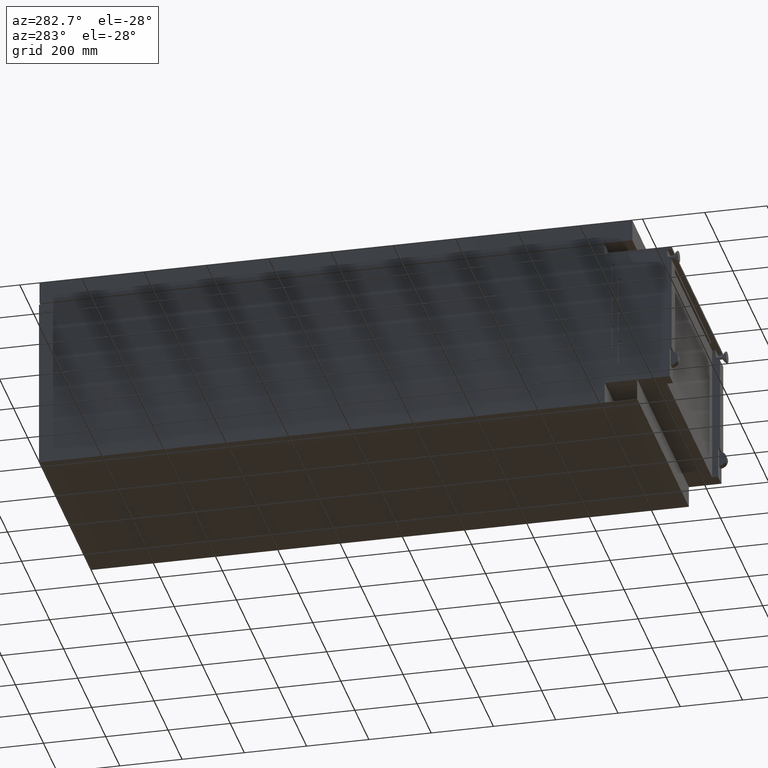
[diagram: clean part render]
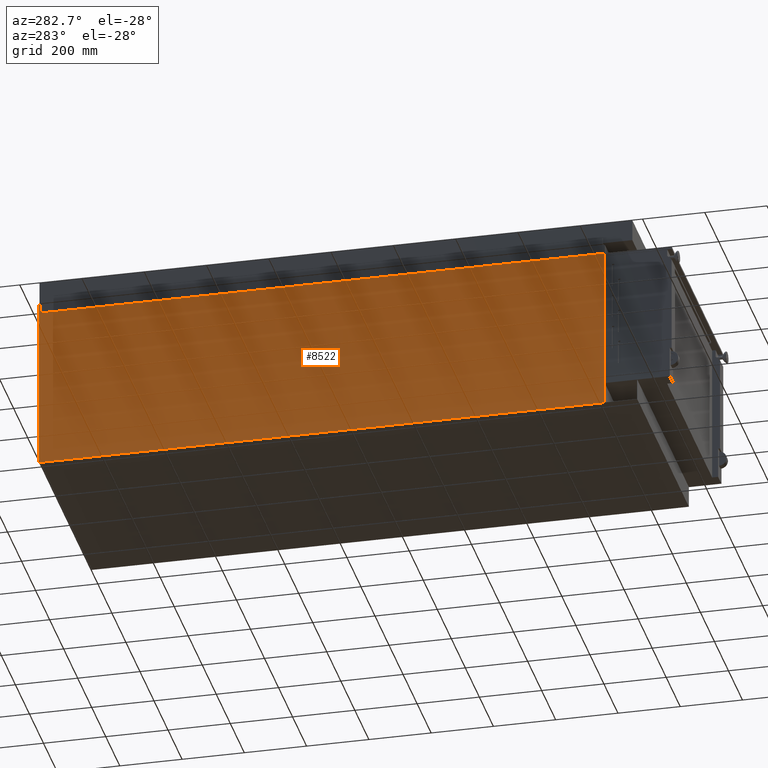
[diagram: same view with one face highlighted and labeled with its STEP entity id]
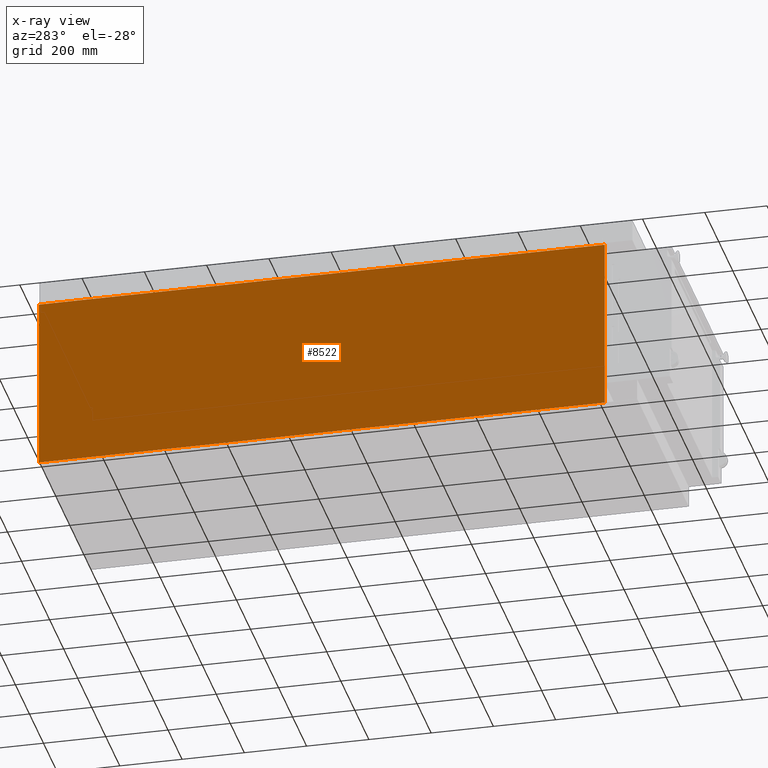
[diagram: x-ray of the same camera — body ghosted, the highlighted face saturated]
A machine part, auxiliary view. The second image highlights one B-rep face of the part: STEP entity #8522.
The next image is the same camera in x-ray: the body ghosted, the highlighted face saturated — about 0% of this face is hidden behind the body in this view.
In plain terms, the highlighted planar face has unit normal (-1, 0, 0).
Its self-contained STEP definition (entity closure, byte-faithful):
#264 = CARTESIAN_POINT ( 'NONE',  ( -368.0000000000000000, 1015.849999999999900, 280.0000000000001100 ) ) ;
#998 = EDGE_CURVE ( 'NONE', #9938, #4778, #9008, .T. ) ;
#2041 = DIRECTION ( 'NONE',  ( 0.0000000000000000000, -2.775557561562891000E-015, 1.000000000000000000 ) ) ;
#2112 = EDGE_CURVE ( 'NONE', #8697, #9938, #6122, .T. ) ;
#2326 = DIRECTION ( 'NONE',  ( -0.0000000000000000000, -1.000000000000000000, -1.092900550893494800E-016 ) ) ;
#2554 = EDGE_LOOP ( 'NONE', ( #5489, #3723, #8004, #3679 ) ) ;
#2929 = PLANE ( 'NONE',  #6252 ) ;
#2961 = CARTESIAN_POINT ( 'NONE',  ( -368.0000000000000000, 0.0000000000000000000, 0.0000000000000000000 ) ) ;
#3679 = ORIENTED_EDGE ( 'NONE', *, *, #2112, .F. ) ;
#3723 = ORIENTED_EDGE ( 'NONE', *, *, #6954, .F. ) ;
#3724 = DIRECTION ( 'NONE',  ( -1.000000000000000000, 0.0000000000000000000, 0.0000000000000000000 ) ) ;
#3824 = CARTESIAN_POINT ( 'NONE',  ( -368.0000000000000000, -801.1499999999998600, 280.0000000000001100 ) ) ;
#3948 = DIRECTION ( 'NONE',  ( 0.0000000000000000000, 0.0000000000000000000, 1.000000000000000000 ) ) ;
#4015 = CARTESIAN_POINT ( 'NONE',  ( -368.0000000000000000, 1015.849999999999900, 280.0000000000001100 ) ) ;
#4016 = CARTESIAN_POINT ( 'NONE',  ( -368.0000000000000000, 1015.849999999999900, -279.9999999999999400 ) ) ;
#4247 = LINE ( 'NONE', #4667, #6654 ) ;
#4377 = VECTOR ( 'NONE', #3948, 1000.000000000000000 ) ;
#4605 = VECTOR ( 'NONE', #7112, 1000.000000000000000 ) ;
#4667 = CARTESIAN_POINT ( 'NONE',  ( -368.0000000000000000, 1015.849999999999900, 280.0000000000001100 ) ) ;
#4778 = VERTEX_POINT ( 'NONE', #264 ) ;
#5386 = DIRECTION ( 'NONE',  ( 0.0000000000000000000, 0.0000000000000000000, -1.000000000000000000 ) ) ;
#5489 = ORIENTED_EDGE ( 'NONE', *, *, #9090, .T. ) ;
#5793 = FACE_OUTER_BOUND ( 'NONE', #2554, .T. ) ;
#6114 = VERTEX_POINT ( 'NONE', #3824 ) ;
#6122 = LINE ( 'NONE', #4016, #4605 ) ;
#6252 = AXIS2_PLACEMENT_3D ( 'NONE', #2961, #3724, #5386 ) ;
#6654 = VECTOR ( 'NONE', #2326, 1000.000000000000000 ) ;
#6954 = EDGE_CURVE ( 'NONE', #4778, #6114, #4247, .T. ) ;
#7112 = DIRECTION ( 'NONE',  ( 0.0000000000000000000, 1.000000000000000000, 1.092900550893494800E-016 ) ) ;
#7451 = CARTESIAN_POINT ( 'NONE',  ( -368.0000000000000000, 1015.849999999999900, -279.9999999999999400 ) ) ;
#8004 = ORIENTED_EDGE ( 'NONE', *, *, #998, .F. ) ;
#8268 = LINE ( 'NONE', #8439, #8878 ) ;
#8439 = CARTESIAN_POINT ( 'NONE',  ( -368.0000000000000000, -801.1499999999997500, 240.0000000000001400 ) ) ;
#8522 = ADVANCED_FACE ( 'NONE', ( #5793 ), #2929, .T. ) ;
#8697 = VERTEX_POINT ( 'NONE', #9607 ) ;
#8878 = VECTOR ( 'NONE', #2041, 1000.000000000000000 ) ;
#9008 = LINE ( 'NONE', #4015, #4377 ) ;
#9090 = EDGE_CURVE ( 'NONE', #8697, #6114, #8268, .T. ) ;
#9607 = CARTESIAN_POINT ( 'NONE',  ( -368.0000000000000000, -801.1499999999997500, -280.0000000000001100 ) ) ;
#9938 = VERTEX_POINT ( 'NONE', #7451 ) ;